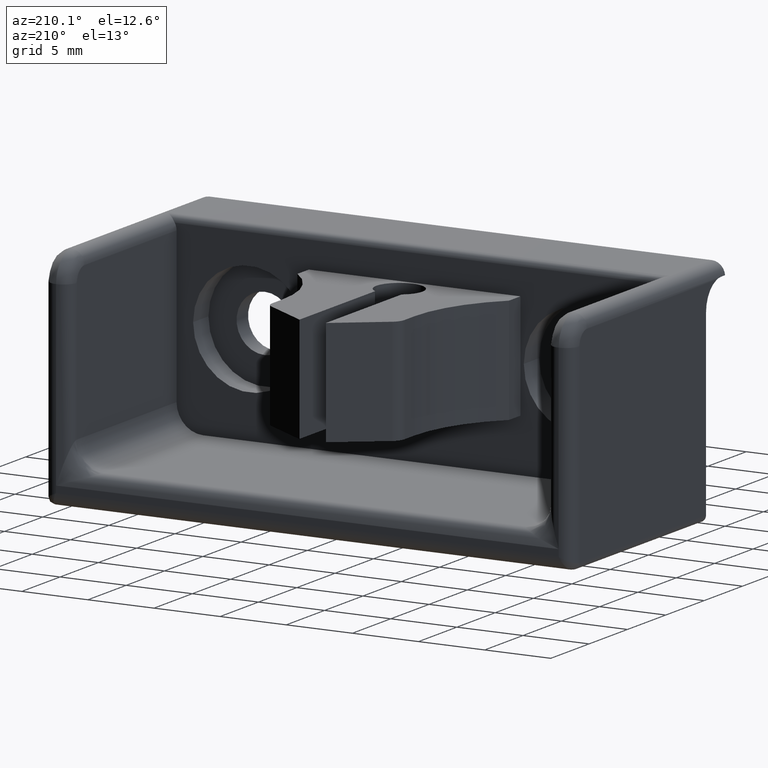
[diagram: clean part render]
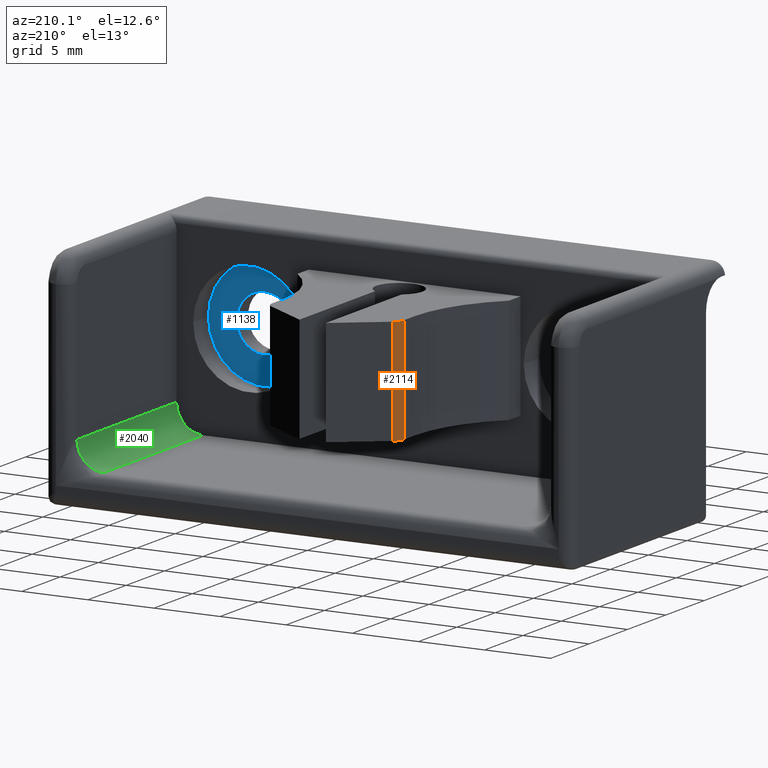
[diagram: same view with three faces highlighted in distinct colors, each labeled with its STEP entity id]
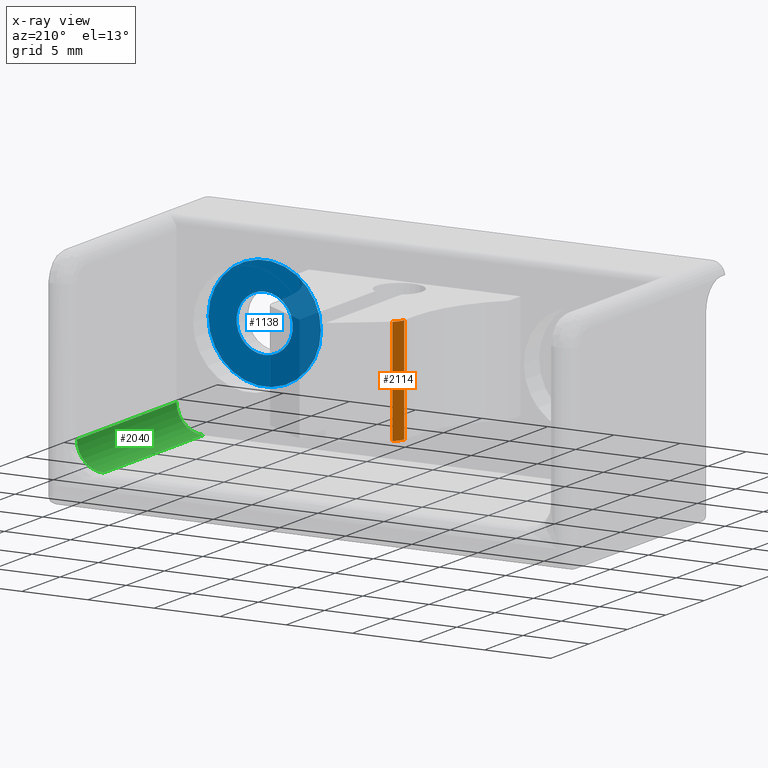
[diagram: x-ray of the same camera — body ghosted, the three highlighted faces saturated]
A machine part, auxiliary view with three faces highlighted in distinct colors.
The next image is the same camera in x-ray (body ghosted, the three faces saturated) — at least one of them is partly hidden behind the body in this view.
Their STEP definitions:

[orange] entity #2114 — the highlighted cylindrical surface (edge-blend (fillet) strip) has radius 1 mm, axis along (0, 0, 1).
#357=CARTESIAN_POINT('',(-5.000000000000002,5.979344438426631,14.500000000000000));
#358=VERTEX_POINT('',#357);
#367=CARTESIAN_POINT('',(-5.000000000000002,5.979344438426631,6.500000000000003));
#368=VERTEX_POINT('',#367);
#369=CARTESIAN_POINT('',(-5.000000000000002,5.979344438426631,14.500000000000000));
#370=DIRECTION('',(0.0,0.0,-1.0));
#371=VECTOR('',#370,7.999999999999996);
#372=LINE('',#369,#371);
#373=EDGE_CURVE('',#358,#368,#372,.T.);
#399=CARTESIAN_POINT('',(-4.573462344363330,6.798576358945671,6.500000000000003));
#400=VERTEX_POINT('',#399);
#407=CARTESIAN_POINT('',(-4.573462344363330,6.798576358945671,14.500000000000000));
#408=VERTEX_POINT('',#407);
#409=CARTESIAN_POINT('',(-4.573462344363330,6.798576358945671,6.500000000000004));
#410=DIRECTION('',(0.0,0.0,1.0));
#411=VECTOR('',#410,7.999999999999996);
#412=LINE('',#409,#411);
#413=EDGE_CURVE('',#400,#408,#412,.T.);
#1251=CARTESIAN_POINT('',(-4.000000000000002,5.979344438426631,14.500000000000000));
#1252=DIRECTION('',(0.0,0.0,1.0));
#1253=DIRECTION('',(1.0,0.0,0.0));
#1254=AXIS2_PLACEMENT_3D('',#1251,#1252,#1253);
#1255=CIRCLE('',#1254,1.0);
#1256=EDGE_CURVE('',#408,#358,#1255,.T.);
#1311=CARTESIAN_POINT('',(-4.000000000000002,5.979344438426631,6.500000000000003));
#1312=DIRECTION('',(0.0,0.0,-1.0));
#1313=DIRECTION('',(-1.0,0.0,0.0));
#1314=AXIS2_PLACEMENT_3D('',#1311,#1312,#1313);
#1315=CIRCLE('',#1314,1.0);
#1316=EDGE_CURVE('',#368,#400,#1315,.T.);
#2103=CARTESIAN_POINT('',(-4.000000000000002,5.979344438426631,6.499999990000003));
#2104=DIRECTION('',(0.0,0.0,1.0));
#2105=DIRECTION('',(1.0,0.0,0.0));
#2106=AXIS2_PLACEMENT_3D('',#2103,#2104,#2105);
#2107=CYLINDRICAL_SURFACE('',#2106,1.0);
#2108=ORIENTED_EDGE('',*,*,#1256,.F.);
#2109=ORIENTED_EDGE('',*,*,#413,.F.);
#2110=ORIENTED_EDGE('',*,*,#1316,.F.);
#2111=ORIENTED_EDGE('',*,*,#373,.F.);
#2112=EDGE_LOOP('',(#2108,#2109,#2110,#2111));
#2113=FACE_OUTER_BOUND('',#2112,.T.);
#2114=ADVANCED_FACE('',(#2113),#2107,.T.);

[blue] entity #1138 — the highlighted planar face has unit normal (0, 1, 0).
#149=CARTESIAN_POINT('',(16.750000000000000,-5.999999999999998,10.000000000000004));
#150=VERTEX_POINT('',#149);
#151=CARTESIAN_POINT('',(8.249999999999989,-5.999999999999998,10.000000000000004));
#152=VERTEX_POINT('',#151);
#153=CARTESIAN_POINT('',(12.499999999999996,-5.999999999999998,10.000000000000004));
#154=DIRECTION('',(0.0,1.0,0.0));
#155=DIRECTION('',(-1.0,0.0,0.0));
#156=AXIS2_PLACEMENT_3D('',#153,#154,#155);
#157=CIRCLE('',#156,4.250000000000005);
#158=EDGE_CURVE('',#150,#152,#157,.T.);
#275=CARTESIAN_POINT('',(12.499999999999996,-5.999999999999998,12.125000000000004));
#276=VERTEX_POINT('',#275);
#277=CARTESIAN_POINT('',(12.499999999999996,-5.999999999999998,7.875000000000000));
#278=VERTEX_POINT('',#277);
#279=CARTESIAN_POINT('',(12.499999999999996,-5.999999999999998,10.000000000000004));
#280=DIRECTION('',(0.0,-1.0,0.0));
#281=DIRECTION('',(-1.0,0.0,0.0));
#282=AXIS2_PLACEMENT_3D('',#279,#280,#281);
#283=CIRCLE('',#282,2.125000000000001);
#284=EDGE_CURVE('',#276,#278,#283,.T.);
#639=CARTESIAN_POINT('',(12.499999999999996,-5.999999999999998,10.000000000000004));
#640=DIRECTION('',(0.0,-1.0,0.0));
#641=DIRECTION('',(-1.0,0.0,0.0));
#642=AXIS2_PLACEMENT_3D('',#639,#640,#641);
#643=CIRCLE('',#642,2.125000000000001);
#644=EDGE_CURVE('',#278,#276,#643,.T.);
#1119=CARTESIAN_POINT('',(17.175000000000001,-5.999999999999998,5.324999999999998));
#1120=DIRECTION('',(0.0,1.0,0.0));
#1121=DIRECTION('',(-1.0,0.0,0.0));
#1122=AXIS2_PLACEMENT_3D('',#1119,#1120,#1121);
#1123=PLANE('',#1122);
#1124=CARTESIAN_POINT('',(12.499999999999996,-5.999999999999998,10.000000000000004));
#1125=DIRECTION('',(0.0,1.0,0.0));
#1126=DIRECTION('',(-1.0,0.0,0.0));
#1127=AXIS2_PLACEMENT_3D('',#1124,#1125,#1126);
#1128=CIRCLE('',#1127,4.250000000000005);
#1129=EDGE_CURVE('',#152,#150,#1128,.T.);
#1130=ORIENTED_EDGE('',*,*,#1129,.T.);
#1131=ORIENTED_EDGE('',*,*,#158,.T.);
#1132=EDGE_LOOP('',(#1130,#1131));
#1133=FACE_OUTER_BOUND('',#1132,.T.);
#1134=ORIENTED_EDGE('',*,*,#644,.T.);
#1135=ORIENTED_EDGE('',*,*,#284,.T.);
#1136=EDGE_LOOP('',(#1134,#1135));
#1137=FACE_BOUND('',#1136,.T.);
#1138=ADVANCED_FACE('',(#1133,#1137),#1123,.T.);

[green] entity #2040 — the highlighted cylindrical surface (edge-blend (fillet) strip) has radius 2 mm, axis along (0, 1, 0).
#505=CARTESIAN_POINT('',(18.000000000000007,-3.999999999999997,4.500000000000000));
#506=VERTEX_POINT('',#505);
#513=CARTESIAN_POINT('',(16.0,-3.999999999999997,2.500000000000001));
#514=VERTEX_POINT('',#513);
#515=CARTESIAN_POINT('',(16.0,-3.999999999999997,4.500000000000002));
#516=DIRECTION('',(0.0,1.0,0.0));
#517=DIRECTION('',(1.0,0.0,0.0));
#518=AXIS2_PLACEMENT_3D('',#515,#516,#517);
#519=CIRCLE('',#518,2.000000000000001);
#520=EDGE_CURVE('',#506,#514,#519,.T.);
#608=CARTESIAN_POINT('',(16.0,8.999999999999995,2.500000000000001));
#609=VERTEX_POINT('',#608);
#610=CARTESIAN_POINT('',(16.0,-3.999999999999998,2.500000000000001));
#611=DIRECTION('',(0.0,1.0,0.0));
#612=VECTOR('',#611,12.999999999999993);
#613=LINE('',#610,#612);
#614=EDGE_CURVE('',#514,#609,#613,.T.);
#931=CARTESIAN_POINT('',(18.000000000000007,8.999999999999995,4.500000000000002));
#932=VERTEX_POINT('',#931);
#939=CARTESIAN_POINT('',(18.000000000000007,8.999999999999996,4.500000000000002));
#940=DIRECTION('',(0.0,-1.0,0.0));
#941=VECTOR('',#940,12.999999999999993);
#942=LINE('',#939,#941);
#943=EDGE_CURVE('',#932,#506,#942,.T.);
#2023=CARTESIAN_POINT('',(16.0,-4.000000009999998,4.500000000000002));
#2024=DIRECTION('',(0.0,1.0,0.0));
#2025=DIRECTION('',(0.0,0.0,1.0));
#2026=AXIS2_PLACEMENT_3D('',#2023,#2024,#2025);
#2027=CYLINDRICAL_SURFACE('',#2026,2.0);
#2028=ORIENTED_EDGE('',*,*,#520,.F.);
#2029=ORIENTED_EDGE('',*,*,#943,.F.);
#2030=CARTESIAN_POINT('',(16.0,8.999999999999995,4.500000000000002));
#2031=DIRECTION('',(0.0,-1.0,0.0));
#2032=DIRECTION('',(0.0,0.0,-1.0));
#2033=AXIS2_PLACEMENT_3D('',#2030,#2031,#2032);
#2034=CIRCLE('',#2033,2.0);
#2035=EDGE_CURVE('',#609,#932,#2034,.T.);
#2036=ORIENTED_EDGE('',*,*,#2035,.F.);
#2037=ORIENTED_EDGE('',*,*,#614,.F.);
#2038=EDGE_LOOP('',(#2028,#2029,#2036,#2037));
#2039=FACE_OUTER_BOUND('',#2038,.T.);
#2040=ADVANCED_FACE('',(#2039),#2027,.F.);